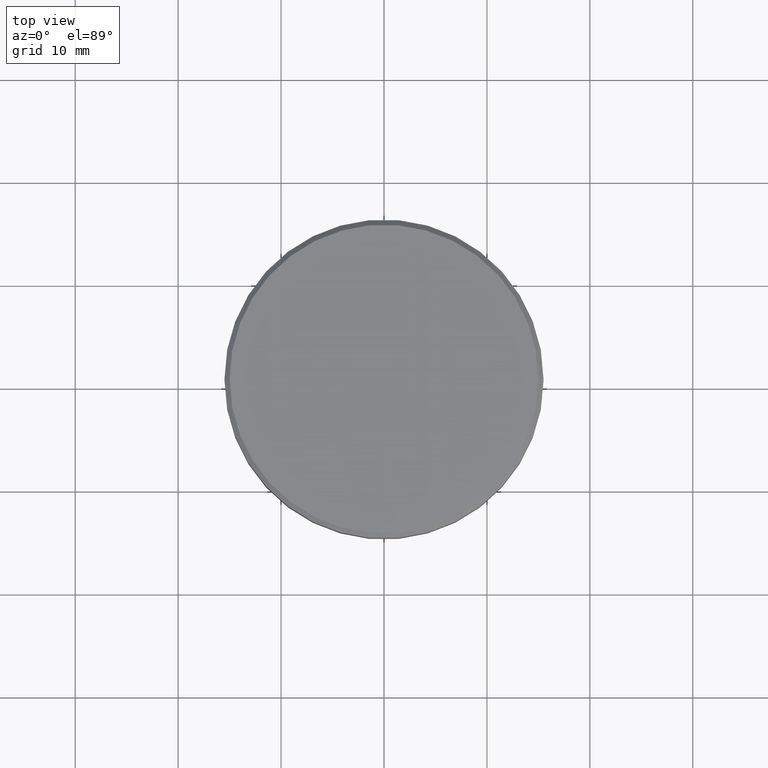
[diagram: clean part render]
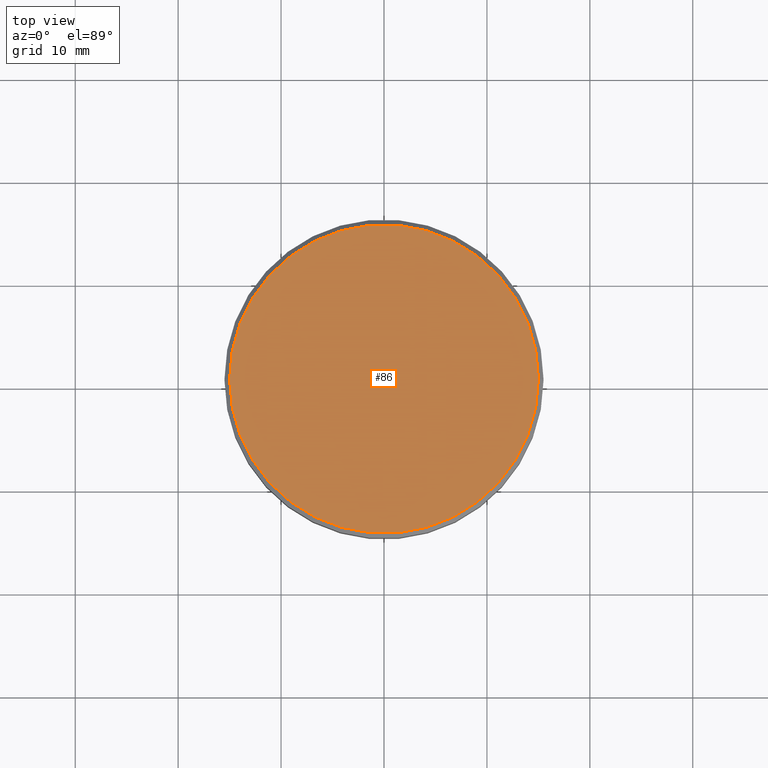
[diagram: same view with one face highlighted and labeled with its STEP entity id]
A machine part, top view. The second image highlights one B-rep face of the part: STEP entity #86.
In plain terms, the highlighted planar face has unit normal (0, -0, 1).
Its self-contained STEP definition (entity closure, byte-faithful):
#32 = CIRCLE ( 'NONE', #701, 15.00000000000000000 ) ;
#75 = CARTESIAN_POINT ( 'NONE',  ( 0.000000000000000000, 0.000000000000000000, 0.000000000000000000 ) ) ;
#86 = ADVANCED_FACE ( 'NONE', ( #993 ), #174, .T. ) ;
#148 = AXIS2_PLACEMENT_3D ( 'NONE', #75, #1157, #880 ) ;
#153 = ORIENTED_EDGE ( 'NONE', *, *, #576, .T. ) ;
#174 = PLANE ( 'NONE',  #148 ) ;
#576 = EDGE_CURVE ( 'NONE', #838, #881, #32, .T. ) ;
#617 = DIRECTION ( 'NONE',  ( 1.000000000000000000, 0.000000000000000000, 0.000000000000000000 ) ) ;
#637 = CARTESIAN_POINT ( 'NONE',  ( 0.000000000000000000, 0.000000000000000000, 0.000000000000000000 ) ) ;
#701 = AXIS2_PLACEMENT_3D ( 'NONE', #1151, #952, #1133 ) ;
#716 = CIRCLE ( 'NONE', #1119, 15.00000000000000000 ) ;
#769 = EDGE_CURVE ( 'NONE', #881, #838, #716, .T. ) ;
#779 = CARTESIAN_POINT ( 'NONE',  ( 15.00000000000000000, 1.867586368699713376E-15, 0.000000000000000000 ) ) ;
#838 = VERTEX_POINT ( 'NONE', #1106 ) ;
#880 = DIRECTION ( 'NONE',  ( 1.000000000000000000, 0.000000000000000000, 0.000000000000000000 ) ) ;
#881 = VERTEX_POINT ( 'NONE', #779 ) ;
#952 = DIRECTION ( 'NONE',  ( -0.000000000000000000, -0.000000000000000000, 1.000000000000000000 ) ) ;
#958 = EDGE_LOOP ( 'NONE', ( #153, #1108 ) ) ;
#993 = FACE_OUTER_BOUND ( 'NONE', #958, .T. ) ;
#997 = DIRECTION ( 'NONE',  ( -0.000000000000000000, -0.000000000000000000, 1.000000000000000000 ) ) ;
#1106 = CARTESIAN_POINT ( 'NONE',  ( -15.00000000000000000, 0.000000000000000000, 0.000000000000000000 ) ) ;
#1108 = ORIENTED_EDGE ( 'NONE', *, *, #769, .T. ) ;
#1119 = AXIS2_PLACEMENT_3D ( 'NONE', #637, #997, #617 ) ;
#1133 = DIRECTION ( 'NONE',  ( 1.000000000000000000, 0.000000000000000000, 0.000000000000000000 ) ) ;
#1151 = CARTESIAN_POINT ( 'NONE',  ( 0.000000000000000000, 0.000000000000000000, 0.000000000000000000 ) ) ;
#1157 = DIRECTION ( 'NONE',  ( 0.000000000000000000, -0.000000000000000000, 1.000000000000000000 ) ) ;